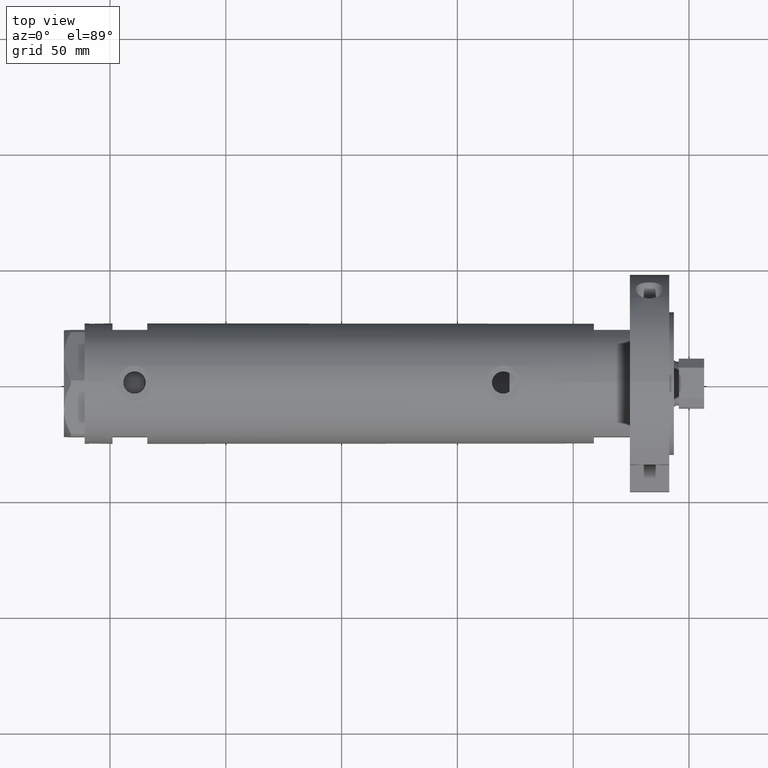
[diagram: clean part render]
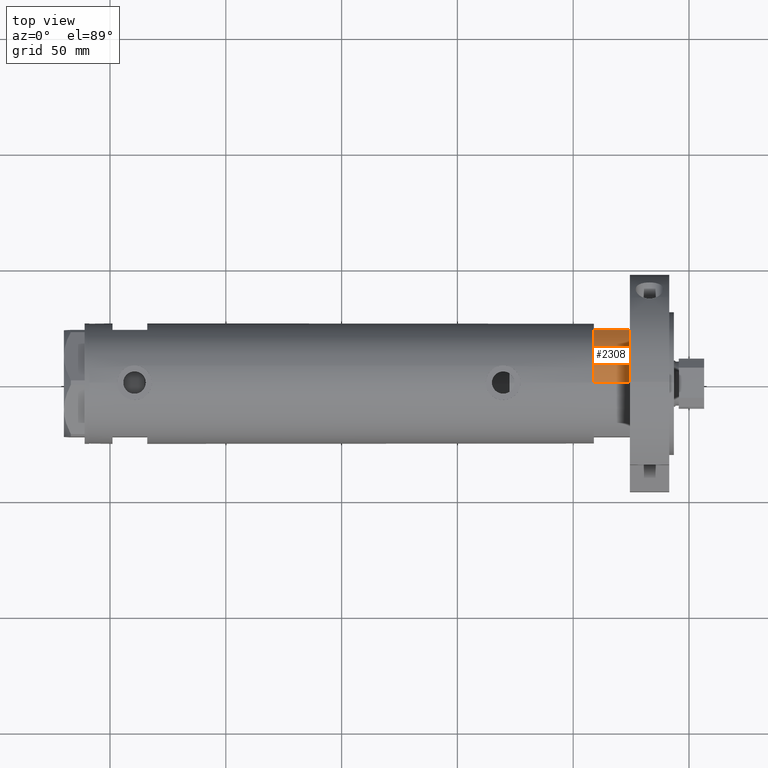
[diagram: same view with one face highlighted and labeled with its STEP entity id]
A machine part, top view. The second image highlights one B-rep face of the part: STEP entity #2308.
In plain terms, the highlighted cylindrical surface (partial cylindrical patch) has radius 26 mm, axis along (-1, -0, 0).
Its self-contained STEP definition (entity closure, byte-faithful):
#95 = VERTEX_POINT ( 'NONE', #4856 ) ;
#118 = DIRECTION ( 'NONE',  ( -0.000000000000000000, -0.000000000000000000, 1.000000000000000000 ) ) ;
#128 = ORIENTED_EDGE ( 'NONE', *, *, #1814, .F. ) ;
#920 = CARTESIAN_POINT ( 'NONE',  ( -26.00000000000000355, 0.000000000000000000, 15.50000000000000000 ) ) ;
#965 = CARTESIAN_POINT ( 'NONE',  ( 0.000000000000000000, 0.000000000000000000, 15.50000000000000000 ) ) ;
#1154 = ORIENTED_EDGE ( 'NONE', *, *, #7420, .F. ) ;
#1305 = CIRCLE ( 'NONE', #5379, 26.00000000000000355 ) ;
#1635 = DIRECTION ( 'NONE',  ( -0.000000000000000000, -0.000000000000000000, -1.000000000000000000 ) ) ;
#1657 = EDGE_LOOP ( 'NONE', ( #128, #1154, #8311, #6800 ) ) ;
#1814 = EDGE_CURVE ( 'NONE', #7398, #8376, #5603, .T. ) ;
#1856 = CARTESIAN_POINT ( 'NONE',  ( -12.12435565298214613, 23.00000000000000355, 15.50000000000000000 ) ) ;
#1885 = AXIS2_PLACEMENT_3D ( 'NONE', #965, #8126, #2679 ) ;
#2131 = VERTEX_POINT ( 'NONE', #1856 ) ;
#2308 = ADVANCED_FACE ( 'NONE', ( #8414 ), #3101, .T. ) ;
#2589 = CIRCLE ( 'NONE', #1885, 26.00000000000000355 ) ;
#2679 = DIRECTION ( 'NONE',  ( 1.000000000000000000, 0.000000000000000000, 0.000000000000000000 ) ) ;
#3101 = CYLINDRICAL_SURFACE ( 'NONE', #4575, 26.00000000000000355 ) ;
#4575 = AXIS2_PLACEMENT_3D ( 'NONE', #6381, #1635, #7083 ) ;
#4856 = CARTESIAN_POINT ( 'NONE',  ( -12.12435565298215145, 23.00000000000000355, 0.000000000000000000 ) ) ;
#5061 = CARTESIAN_POINT ( 'NONE',  ( 0.000000000000000000, 0.000000000000000000, 0.000000000000000000 ) ) ;
#5379 = AXIS2_PLACEMENT_3D ( 'NONE', #5061, #8347, #7741 ) ;
#5603 = LINE ( 'NONE', #8150, #6829 ) ;
#5727 = VECTOR ( 'NONE', #118, 1000.000000000000000 ) ;
#5875 = EDGE_CURVE ( 'NONE', #95, #2131, #8090, .T. ) ;
#6259 = EDGE_CURVE ( 'NONE', #95, #8376, #1305, .T. ) ;
#6381 = CARTESIAN_POINT ( 'NONE',  ( 0.000000000000000000, 0.000000000000000000, 15.50000000000000000 ) ) ;
#6800 = ORIENTED_EDGE ( 'NONE', *, *, #6259, .T. ) ;
#6829 = VECTOR ( 'NONE', #7583, 1000.000000000000000 ) ;
#7083 = DIRECTION ( 'NONE',  ( -1.000000000000000000, 0.000000000000000000, 0.000000000000000000 ) ) ;
#7398 = VERTEX_POINT ( 'NONE', #920 ) ;
#7420 = EDGE_CURVE ( 'NONE', #2131, #7398, #2589, .T. ) ;
#7558 = CARTESIAN_POINT ( 'NONE',  ( -12.12435565298215145, 23.00000000000000355, 0.000000000000000000 ) ) ;
#7583 = DIRECTION ( 'NONE',  ( -0.000000000000000000, -0.000000000000000000, -1.000000000000000000 ) ) ;
#7741 = DIRECTION ( 'NONE',  ( 1.000000000000000000, 0.000000000000000000, 0.000000000000000000 ) ) ;
#8090 = LINE ( 'NONE', #7558, #5727 ) ;
#8126 = DIRECTION ( 'NONE',  ( 0.000000000000000000, 0.000000000000000000, 1.000000000000000000 ) ) ;
#8138 = CARTESIAN_POINT ( 'NONE',  ( -26.00000000000000355, 0.000000000000000000, 0.000000000000000000 ) ) ;
#8150 = CARTESIAN_POINT ( 'NONE',  ( -26.00000000000000355, 0.000000000000000000, 15.50000000000000000 ) ) ;
#8311 = ORIENTED_EDGE ( 'NONE', *, *, #5875, .F. ) ;
#8347 = DIRECTION ( 'NONE',  ( 0.000000000000000000, 0.000000000000000000, 1.000000000000000000 ) ) ;
#8376 = VERTEX_POINT ( 'NONE', #8138 ) ;
#8414 = FACE_OUTER_BOUND ( 'NONE', #1657, .T. ) ;